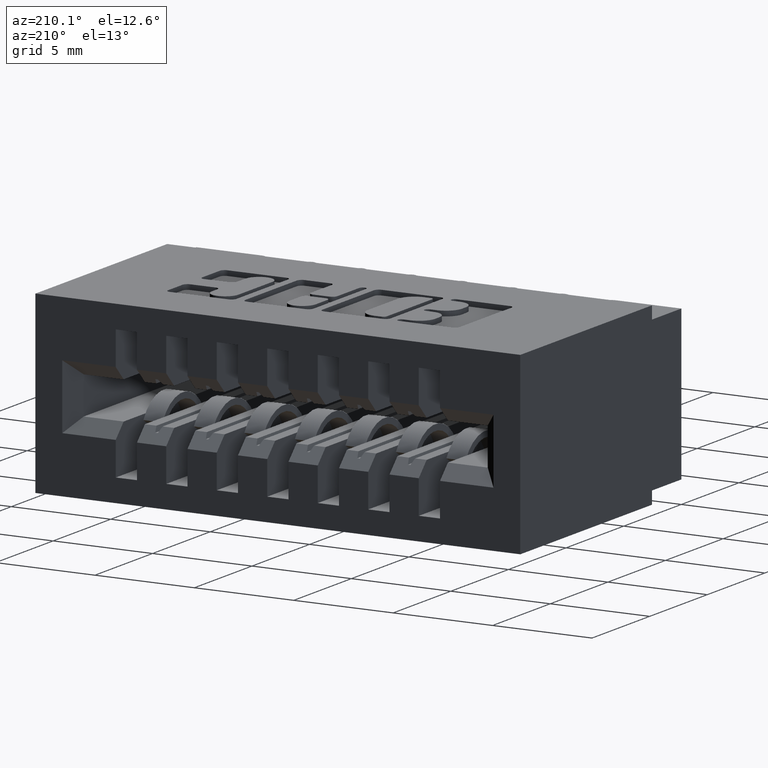
[diagram: clean part render]
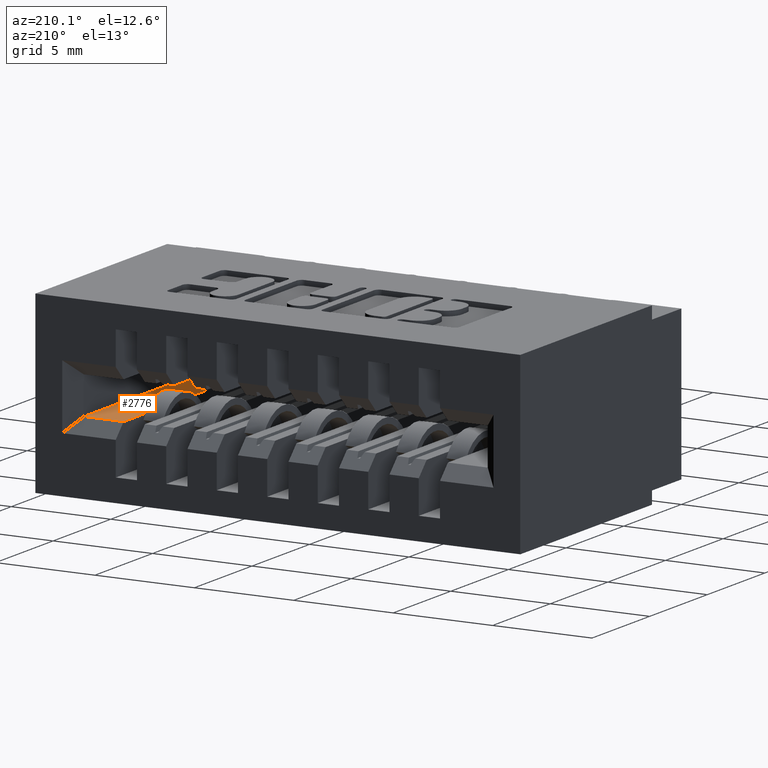
[diagram: same view with one face highlighted and labeled with its STEP entity id]
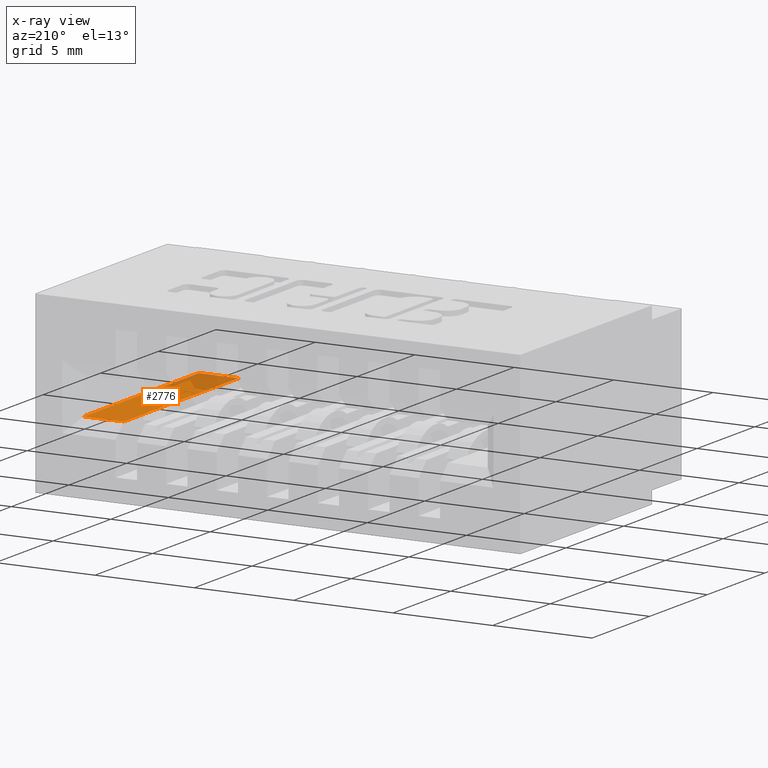
[diagram: x-ray of the same camera — body ghosted, the highlighted face saturated]
A machine part, auxiliary view. The second image highlights one B-rep face of the part: STEP entity #2776.
The next image is the same camera in x-ray: the body ghosted, the highlighted face saturated — about 27% of this face is hidden behind the body in this view.
In plain terms, the highlighted planar face has unit normal (0, 0, -1).
Its self-contained STEP definition (entity closure, byte-faithful):
#114 = FACE_OUTER_BOUND ( 'NONE', #2543, .T. ) ;
#497 = DIRECTION ( 'NONE',  ( -1.232595164407830900E-032, -1.000000000000000000, 0.0000000000000000000 ) ) ;
#1285 = VECTOR ( 'NONE', #497, 39.37007874015748100 ) ;
#1582 = EDGE_CURVE ( 'NONE', #9087, #15050, #8264, .T. ) ;
#1700 = CARTESIAN_POINT ( 'NONE',  ( 0.8009999999999997100, 0.1300000000000001200, -0.2120000000000002700 ) ) ;
#2543 = EDGE_LOOP ( 'NONE', ( #6710, #8628, #3768, #4842 ) ) ;
#2776 = ADVANCED_FACE ( 'NONE', ( #114 ), #14787, .F. ) ;
#3658 = CARTESIAN_POINT ( 'NONE',  ( 0.8800000000000003400, 0.5230000000000000200, -0.2119999999999999900 ) ) ;
#3768 = ORIENTED_EDGE ( 'NONE', *, *, #6851, .F. ) ;
#3837 = CARTESIAN_POINT ( 'NONE',  ( 1.010816665604960600, 0.5230000000000000200, -0.2119999999999999900 ) ) ;
#4011 = CARTESIAN_POINT ( 'NONE',  ( 0.8800000000000003400, 0.1300000000000001200, -0.2120000000000002700 ) ) ;
#4715 = CARTESIAN_POINT ( 'NONE',  ( 0.07999999999999971000, 0.1300000000000001200, -0.2120000000000002700 ) ) ;
#4842 = ORIENTED_EDGE ( 'NONE', *, *, #1582, .T. ) ;
#5420 = VECTOR ( 'NONE', #12668, 39.37007874015748100 ) ;
#6017 = CARTESIAN_POINT ( 'NONE',  ( 0.07999999999999971000, 0.1300000000000001200, -0.2120000000000002700 ) ) ;
#6710 = ORIENTED_EDGE ( 'NONE', *, *, #9449, .T. ) ;
#6851 = EDGE_CURVE ( 'NONE', #9087, #14539, #7165, .T. ) ;
#7165 = LINE ( 'NONE', #6017, #10890 ) ;
#7613 = LINE ( 'NONE', #8076, #1285 ) ;
#8076 = CARTESIAN_POINT ( 'NONE',  ( 0.8009999999999997100, 0.1300000000000001200, -0.2120000000000002700 ) ) ;
#8218 = DIRECTION ( 'NONE',  ( -0.0000000000000000000, 1.000000000000000000, -0.0000000000000000000 ) ) ;
#8234 = AXIS2_PLACEMENT_3D ( 'NONE', #4715, #16034, #8513 ) ;
#8264 = LINE ( 'NONE', #13284, #11610 ) ;
#8513 = DIRECTION ( 'NONE',  ( -1.000000000000000000, 0.0000000000000000000, -0.0000000000000000000 ) ) ;
#8602 = EDGE_CURVE ( 'NONE', #10728, #14539, #7613, .T. ) ;
#8628 = ORIENTED_EDGE ( 'NONE', *, *, #8602, .T. ) ;
#9087 = VERTEX_POINT ( 'NONE', #4011 ) ;
#9449 = EDGE_CURVE ( 'NONE', #15050, #10728, #15062, .T. ) ;
#10728 = VERTEX_POINT ( 'NONE', #12606 ) ;
#10890 = VECTOR ( 'NONE', #12358, 39.37007874015748100 ) ;
#11610 = VECTOR ( 'NONE', #8218, 39.37007874015748100 ) ;
#12358 = DIRECTION ( 'NONE',  ( -1.000000000000000000, -0.0000000000000000000, -0.0000000000000000000 ) ) ;
#12606 = CARTESIAN_POINT ( 'NONE',  ( 0.8009999999999997100, 0.5230000000000000200, -0.2120000000000002700 ) ) ;
#12668 = DIRECTION ( 'NONE',  ( -1.000000000000000000, 0.0000000000000000000, 0.0000000000000000000 ) ) ;
#13284 = CARTESIAN_POINT ( 'NONE',  ( 0.8800000000000003400, 0.1300000000000001200, -0.2120000000000002700 ) ) ;
#14539 = VERTEX_POINT ( 'NONE', #1700 ) ;
#14787 = PLANE ( 'NONE',  #8234 ) ;
#15050 = VERTEX_POINT ( 'NONE', #3658 ) ;
#15062 = LINE ( 'NONE', #3837, #5420 ) ;
#16034 = DIRECTION ( 'NONE',  ( 0.0000000000000000000, 0.0000000000000000000, -1.000000000000000000 ) ) ;